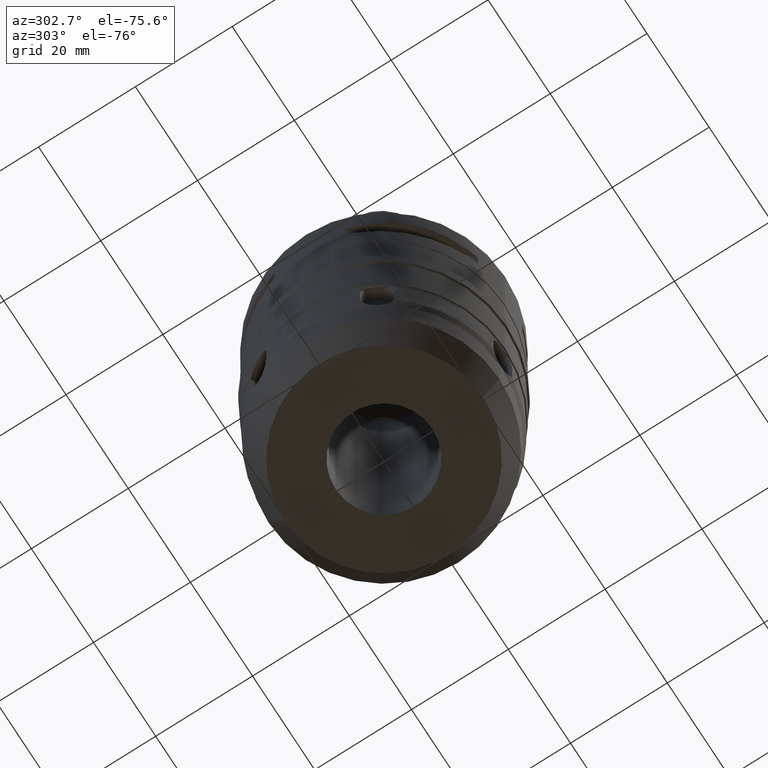
[diagram: clean part render]
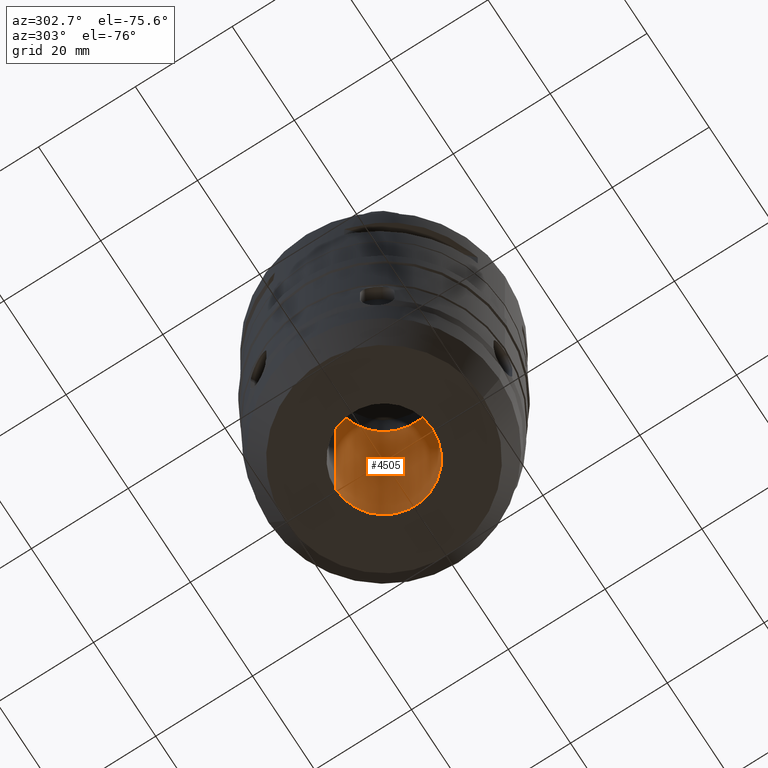
[diagram: same view with one face highlighted and labeled with its STEP entity id]
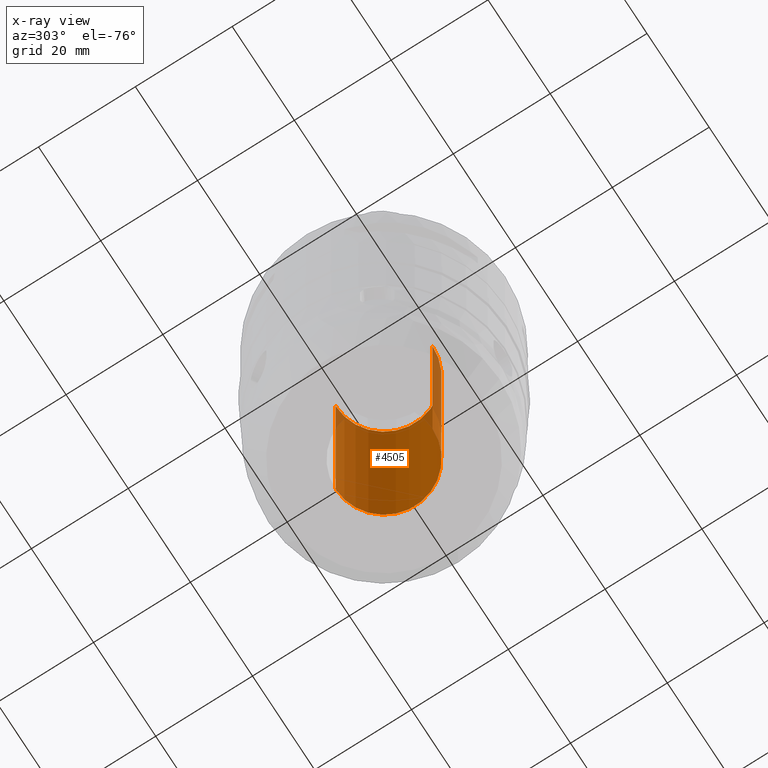
[diagram: x-ray of the same camera — body ghosted, the highlighted face saturated]
A machine part, auxiliary view. The second image highlights one B-rep face of the part: STEP entity #4505.
The next image is the same camera in x-ray: the body ghosted, the highlighted face saturated — about 9% of this face is hidden behind the body in this view.
In plain terms, the highlighted cylindrical surface (partial cylindrical patch) has radius 10 mm, axis along (0, 0, -1).
Its self-contained STEP definition (entity closure, byte-faithful):
#1643=CARTESIAN_POINT('',(0.E0,0.E0,-7.5E1));
#1644=DIRECTION('',(0.E0,0.E0,-1.E0));
#1645=DIRECTION('',(0.E0,1.E0,0.E0));
#1646=AXIS2_PLACEMENT_3D('',#1643,#1644,#1645);
#1651=DIRECTION('',(0.E0,0.E0,1.E0));
#1652=VECTOR('',#1651,5.8E1);
#1653=CARTESIAN_POINT('',(0.E0,-1.E1,-7.5E1));
#1654=LINE('',#1653,#1652);
#1658=DIRECTION('',(0.E0,0.E0,1.E0));
#1659=VECTOR('',#1658,5.8E1);
#1660=CARTESIAN_POINT('',(0.E0,1.E1,-7.5E1));
#1661=LINE('',#1660,#1659);
#1681=CARTESIAN_POINT('',(0.E0,0.E0,-1.7E1));
#1682=DIRECTION('',(0.E0,0.E0,1.E0));
#1683=DIRECTION('',(0.E0,-1.E0,0.E0));
#1684=AXIS2_PLACEMENT_3D('',#1681,#1682,#1683);
#2969=CARTESIAN_POINT('',(0.E0,-1.E1,-7.5E1));
#2970=CARTESIAN_POINT('',(0.E0,1.E1,-7.5E1));
#2971=VERTEX_POINT('',#2969);
#2972=VERTEX_POINT('',#2970);
#2973=CARTESIAN_POINT('',(0.E0,1.E1,-1.7E1));
#2974=VERTEX_POINT('',#2973);
#2975=CARTESIAN_POINT('',(0.E0,-1.E1,-1.7E1));
#2976=VERTEX_POINT('',#2975);
#4493=CARTESIAN_POINT('',(0.E0,0.E0,3.75E0));
#4494=DIRECTION('',(0.E0,0.E0,-1.E0));
#4495=DIRECTION('',(0.E0,-1.E0,0.E0));
#4496=AXIS2_PLACEMENT_3D('',#4493,#4494,#4495);
#4497=CYLINDRICAL_SURFACE('',#4496,1.E1);
#4498=ORIENTED_EDGE('',*,*,#4483,.T.);
#4500=ORIENTED_EDGE('',*,*,#4499,.F.);
#4501=ORIENTED_EDGE('',*,*,#4486,.F.);
#4502=ORIENTED_EDGE('',*,*,#4473,.F.);
#4503=EDGE_LOOP('',(#4498,#4500,#4501,#4502));
#4504=FACE_OUTER_BOUND('',#4503,.F.);
#1647=CIRCLE('',#1646,1.E1);
#1685=CIRCLE('',#1684,1.E1);
#4473=EDGE_CURVE('',#2972,#2971,#1647,.T.);
#4483=EDGE_CURVE('',#2972,#2974,#1661,.T.);
#4486=EDGE_CURVE('',#2971,#2976,#1654,.T.);
#4499=EDGE_CURVE('',#2976,#2974,#1685,.T.);
#4505=ADVANCED_FACE('',(#4504),#4497,.F.);